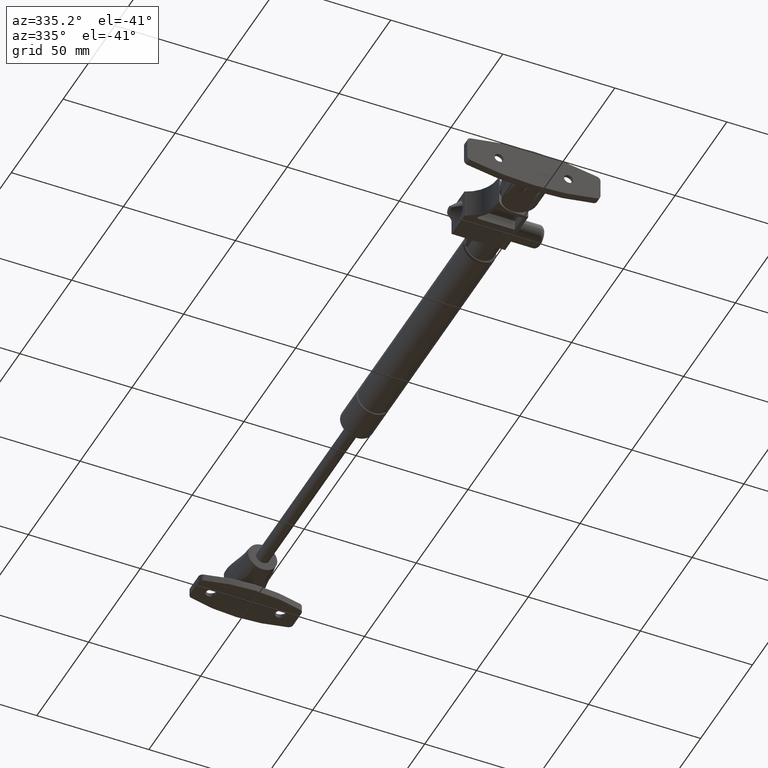
[diagram: clean part render]
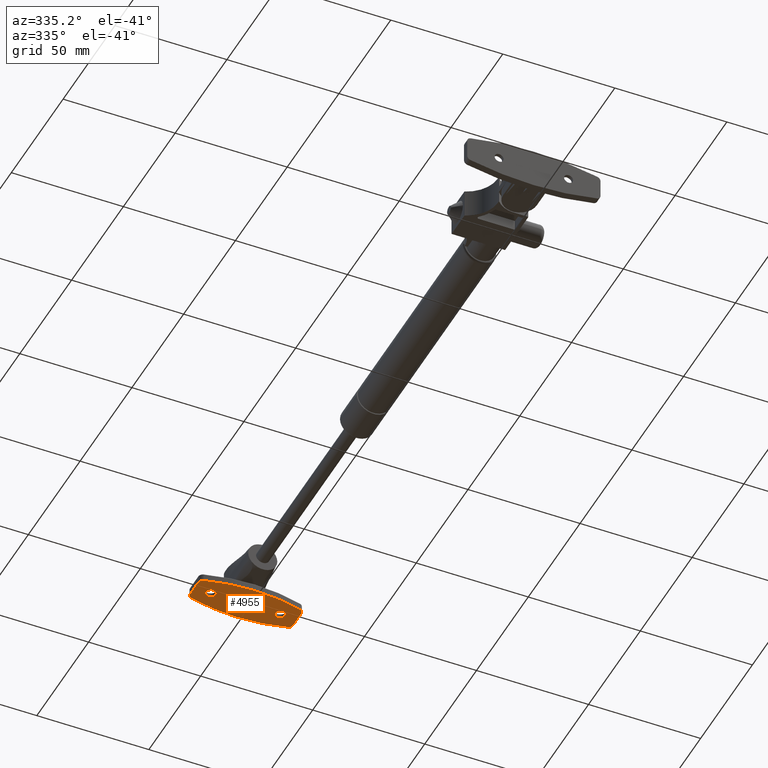
[diagram: same view with one face highlighted and labeled with its STEP entity id]
A machine part, auxiliary view. The second image highlights one B-rep face of the part: STEP entity #4955.
In plain terms, the highlighted planar face has unit normal (0, 0, 1).
Its self-contained STEP definition (entity closure, byte-faithful):
#335=LINE('',#7462,#586);
#337=LINE('',#7502,#588);
#586=VECTOR('',#5996,8.02666420895788);
#588=VECTOR('',#6046,8.02666420895788);
#1003=PLANE('',#5353);
#1103=FACE_BOUND('',#1551,.T.);
#1104=FACE_BOUND('',#1552,.T.);
#1184=FACE_OUTER_BOUND('',#1550,.T.);
#1550=EDGE_LOOP('',(#3523,#3524,#3525,#3526,#3527,#3528,#3529,#3530));
#1551=EDGE_LOOP('',(#3531));
#1552=EDGE_LOOP('',(#3532));
#1959=CIRCLE('',#5328,77.3214285714285);
#1960=CIRCLE('',#5330,2.);
#1961=CIRCLE('',#5333,2.);
#1969=CIRCLE('',#5348,2.15);
#1971=CIRCLE('',#5352,2.15);
#1972=CIRCLE('',#5354,77.3214285714289);
#1973=CIRCLE('',#5355,2.);
#1974=CIRCLE('',#5356,2.);
#2261=VERTEX_POINT('',#7450);
#2262=VERTEX_POINT('',#7452);
#2263=VERTEX_POINT('',#7456);
#2264=VERTEX_POINT('',#7460);
#2265=VERTEX_POINT('',#7464);
#2273=VERTEX_POINT('',#7488);
#2275=VERTEX_POINT('',#7494);
#2276=VERTEX_POINT('',#7497);
#2277=VERTEX_POINT('',#7499);
#2278=VERTEX_POINT('',#7501);
#2730=EDGE_CURVE('',#2262,#2261,#1959,.T.);
#2733=EDGE_CURVE('',#2263,#2261,#1960,.T.);
#2735=EDGE_CURVE('',#2263,#2264,#335,.T.);
#2737=EDGE_CURVE('',#2265,#2264,#1961,.T.);
#2745=EDGE_CURVE('',#2273,#2273,#1969,.T.);
#2747=EDGE_CURVE('',#2275,#2275,#1971,.T.);
#2748=EDGE_CURVE('',#2265,#2276,#1972,.T.);
#2749=EDGE_CURVE('',#2277,#2276,#1973,.T.);
#2750=EDGE_CURVE('',#2277,#2278,#337,.T.);
#2751=EDGE_CURVE('',#2262,#2278,#1974,.T.);
#3523=ORIENTED_EDGE('',*,*,#2737,.F.);
#3524=ORIENTED_EDGE('',*,*,#2748,.T.);
#3525=ORIENTED_EDGE('',*,*,#2749,.F.);
#3526=ORIENTED_EDGE('',*,*,#2750,.T.);
#3527=ORIENTED_EDGE('',*,*,#2751,.F.);
#3528=ORIENTED_EDGE('',*,*,#2730,.T.);
#3529=ORIENTED_EDGE('',*,*,#2733,.F.);
#3530=ORIENTED_EDGE('',*,*,#2735,.T.);
#3531=ORIENTED_EDGE('',*,*,#2745,.T.);
#3532=ORIENTED_EDGE('',*,*,#2747,.T.);
#4955=ADVANCED_FACE('',(#1184,#1103,#1104),#1003,.F.);
#5328=AXIS2_PLACEMENT_3D('',#7453,#5985,#5986);
#5330=AXIS2_PLACEMENT_3D('',#7458,#5991,#5992);
#5333=AXIS2_PLACEMENT_3D('',#7466,#6000,#6001);
#5348=AXIS2_PLACEMENT_3D('',#7489,#6030,#6031);
#5352=AXIS2_PLACEMENT_3D('',#7495,#6038,#6039);
#5353=AXIS2_PLACEMENT_3D('',#7496,#6040,#6041);
#5354=AXIS2_PLACEMENT_3D('',#7498,#6042,#6043);
#5355=AXIS2_PLACEMENT_3D('',#7500,#6044,#6045);
#5356=AXIS2_PLACEMENT_3D('',#7503,#6047,#6048);
#5985=DIRECTION('center_axis',(0.,0.,-1.));
#5986=DIRECTION('ref_axis',(0.95473441108545,-0.297459584295612,0.));
#5991=DIRECTION('center_axis',(0.,0.,1.));
#5992=DIRECTION('ref_axis',(-0.600497659899527,0.799626513101706,0.));
#5996=DIRECTION('',(1.,4.03717463500057E-16,0.));
#6000=DIRECTION('center_axis',(0.,0.,1.));
#6001=DIRECTION('ref_axis',(0.600497659899529,0.799626513101704,0.));
#6030=DIRECTION('center_axis',(0.,0.,1.));
#6031=DIRECTION('ref_axis',(1.,0.,0.));
#6038=DIRECTION('center_axis',(0.,0.,1.));
#6039=DIRECTION('ref_axis',(1.,0.,0.));
#6040=DIRECTION('center_axis',(0.,0.,1.));
#6041=DIRECTION('ref_axis',(1.,0.,0.));
#6042=DIRECTION('center_axis',(0.,0.,-1.));
#6043=DIRECTION('ref_axis',(-0.954734411085451,0.29745958429561,0.));
#6044=DIRECTION('center_axis',(0.,0.,1.));
#6045=DIRECTION('ref_axis',(0.600497659899527,-0.799626513101705,0.));
#6046=DIRECTION('',(-1.,-4.03717463500057E-16,0.));
#6047=DIRECTION('center_axis',(0.,0.,1.));
#6048=DIRECTION('ref_axis',(-0.600497659899528,-0.799626513101705,0.));
#7450=CARTESIAN_POINT('',(-5.93402750412372,21.5576102418208,0.));
#7452=CARTESIAN_POINT('',(-5.9340275041237,-21.5576102418208,0.));
#7453=CARTESIAN_POINT('Origin',(68.3214285714285,2.88657986402541E-14,0.));
#7456=CARTESIAN_POINT('',(-4.01333210447894,23.,0.));
#7458=CARTESIAN_POINT('Origin',(-4.01333210447894,21.,0.));
#7460=CARTESIAN_POINT('',(4.01333210447894,23.,0.));
#7462=CARTESIAN_POINT('',(-5.5,23.,0.));
#7464=CARTESIAN_POINT('',(5.93402750412372,21.5576102418208,0.));
#7466=CARTESIAN_POINT('Origin',(4.01333210447894,21.,0.));
#7488=CARTESIAN_POINT('',(-2.15000000000001,15.5,0.));
#7489=CARTESIAN_POINT('Origin',(-5.69460761603519E-15,15.5,0.));
#7494=CARTESIAN_POINT('',(-2.15,-15.5,0.));
#7495=CARTESIAN_POINT('Origin',(0.,-15.5,0.));
#7496=CARTESIAN_POINT('Origin',(2.17075193439225E-15,1.04913586853478E-14,
0.));
#7497=CARTESIAN_POINT('',(5.93402750412373,-21.5576102418208,0.));
#7498=CARTESIAN_POINT('Origin',(-68.3214285714289,-2.22044604925031E-14,
0.));
#7499=CARTESIAN_POINT('',(4.01333210447895,-23.,0.));
#7500=CARTESIAN_POINT('Origin',(4.01333210447895,-21.,0.));
#7501=CARTESIAN_POINT('',(-4.01333210447893,-23.,0.));
#7502=CARTESIAN_POINT('',(5.50000000000002,-23.,0.));
#7503=CARTESIAN_POINT('Origin',(-4.01333210447893,-21.,0.));